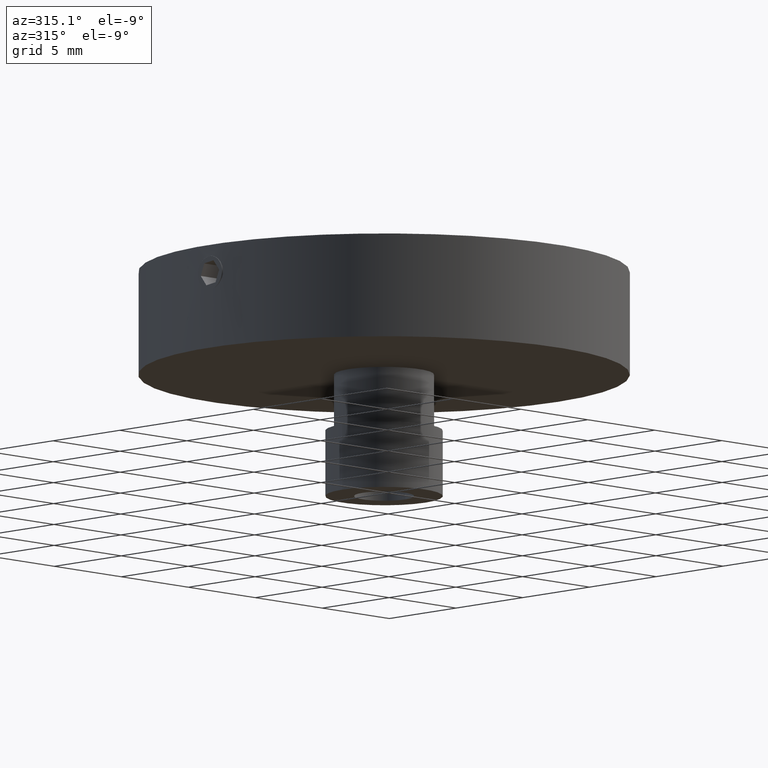
[diagram: clean part render]
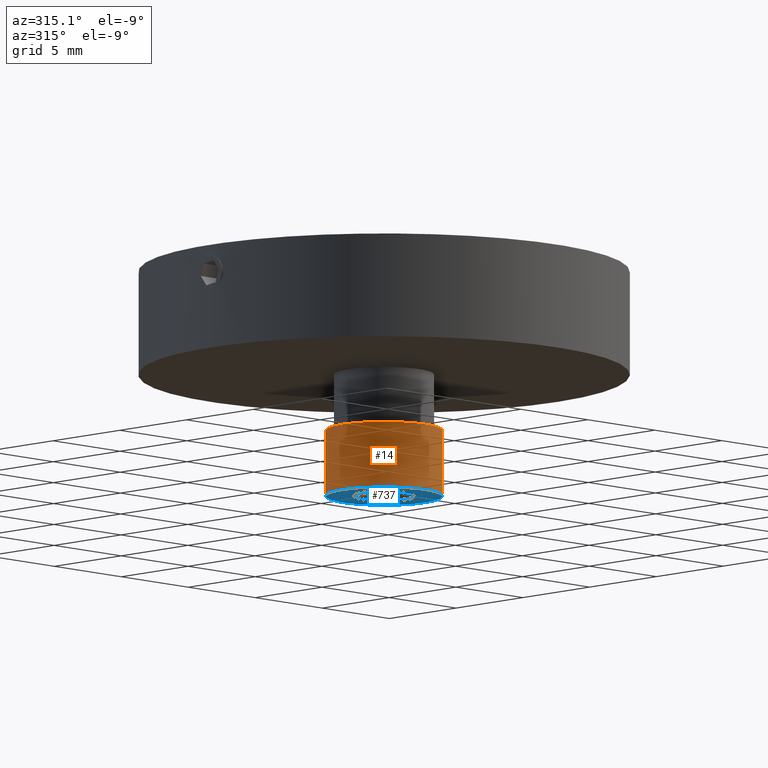
[diagram: same view with the hole feature highlighted: cylindrical wall and planar end face, labeled with their STEP entity ids]
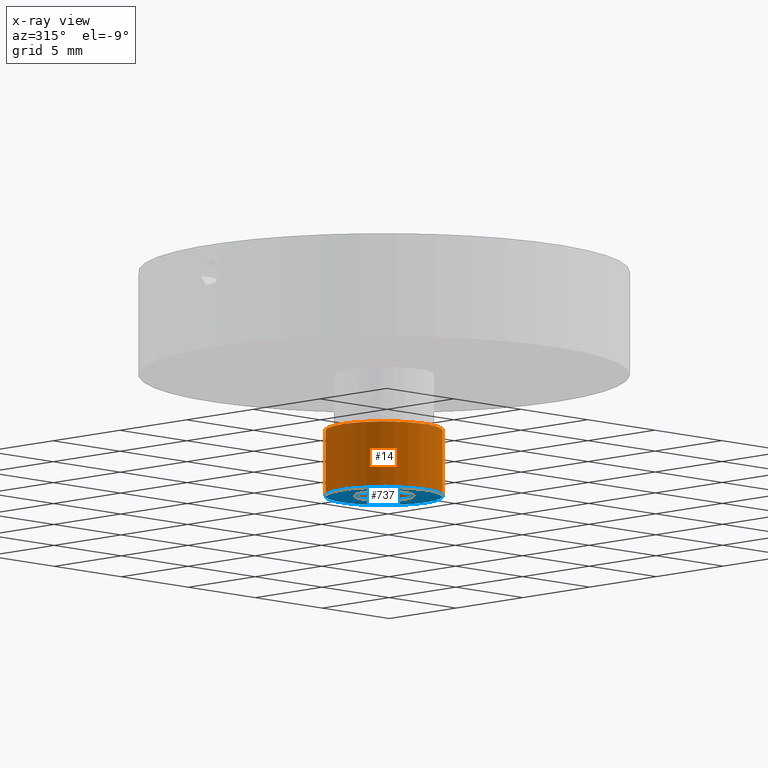
[diagram: x-ray of the same camera — body ghosted, the hole faces saturated]
A machine part, auxiliary view. The highlighted faces form one hole feature of diameter 6.22 mm: the cylindrical wall (entity #14, orange) and its adjacent planar end face (entity #737, blue) — they share a circular edge in the B-rep.
The next image is the same camera in x-ray (body ghosted, the hole faces saturated) — the bore reads through the body.
Wall:
#14 = ADVANCED_FACE ( 'NONE', ( #499, #819 ), #1077, .T. ) ;
#82 = CARTESIAN_POINT ( 'NONE',  ( -1.822524619646406000, -1.515573104758408500, 20.00000000000000400 ) ) ;
#176 = VERTEX_POINT ( 'NONE', #990 ) ;
#267 = ORIENTED_EDGE ( 'NONE', *, *, #1025, .T. ) ;
#268 = AXIS2_PLACEMENT_3D ( 'NONE', #1064, #1032, #282 ) ;
#282 = DIRECTION ( 'NONE',  ( -1.000000000000000000, 0.0000000000000000000, 0.0000000000000000000 ) ) ;
#341 = ORIENTED_EDGE ( 'NONE', *, *, #885, .F. ) ;
#373 = AXIS2_PLACEMENT_3D ( 'NONE', #860, #374, #687 ) ;
#374 = DIRECTION ( 'NONE',  ( 0.0000000000000000000, 0.0000000000000000000, -1.000000000000000000 ) ) ;
#381 = EDGE_LOOP ( 'NONE', ( #341 ) ) ;
#465 = CARTESIAN_POINT ( 'NONE',  ( -4.932524619646406100, -1.515573104758408500, 20.00000000000000400 ) ) ;
#499 = FACE_OUTER_BOUND ( 'NONE', #381, .T. ) ;
#587 = CIRCLE ( 'NONE', #373, 3.109999999999999900 ) ;
#611 = EDGE_LOOP ( 'NONE', ( #267 ) ) ;
#687 = DIRECTION ( 'NONE',  ( -1.000000000000000000, 0.0000000000000000000, 0.0000000000000000000 ) ) ;
#819 = FACE_OUTER_BOUND ( 'NONE', #611, .T. ) ;
#860 = CARTESIAN_POINT ( 'NONE',  ( -1.822524619646406000, -1.515573104758408500, 23.50000000000000000 ) ) ;
#885 = EDGE_CURVE ( 'NONE', #899, #899, #977, .T. ) ;
#899 = VERTEX_POINT ( 'NONE', #465 ) ;
#977 = CIRCLE ( 'NONE', #268, 3.109999999999999900 ) ;
#990 = CARTESIAN_POINT ( 'NONE',  ( -4.932524619646406100, -1.515573104758408500, 23.50000000000000000 ) ) ;
#1025 = EDGE_CURVE ( 'NONE', #176, #176, #587, .T. ) ;
#1030 = AXIS2_PLACEMENT_3D ( 'NONE', #82, #1048, #1062 ) ;
#1032 = DIRECTION ( 'NONE',  ( 0.0000000000000000000, 0.0000000000000000000, -1.000000000000000000 ) ) ;
#1048 = DIRECTION ( 'NONE',  ( -0.0000000000000000000, -0.0000000000000000000, 1.000000000000000000 ) ) ;
#1062 = DIRECTION ( 'NONE',  ( 1.000000000000000000, 0.0000000000000000000, 0.0000000000000000000 ) ) ;
#1064 = CARTESIAN_POINT ( 'NONE',  ( -1.822524619646406000, -1.515573104758408500, 20.00000000000000400 ) ) ;
#1077 = CYLINDRICAL_SURFACE ( 'NONE', #1030, 3.110000000000000300 ) ;
End face:
#70 = EDGE_LOOP ( 'NONE', ( #159 ) ) ;
#159 = ORIENTED_EDGE ( 'NONE', *, *, #885, .T. ) ;
#256 = EDGE_CURVE ( 'NONE', #475, #475, #846, .T. ) ;
#268 = AXIS2_PLACEMENT_3D ( 'NONE', #1064, #1032, #282 ) ;
#273 = AXIS2_PLACEMENT_3D ( 'NONE', #693, #320, #768 ) ;
#282 = DIRECTION ( 'NONE',  ( -1.000000000000000000, 0.0000000000000000000, 0.0000000000000000000 ) ) ;
#320 = DIRECTION ( 'NONE',  ( 0.0000000000000000000, 0.0000000000000000000, -1.000000000000000000 ) ) ;
#465 = CARTESIAN_POINT ( 'NONE',  ( -4.932524619646406100, -1.515573104758408500, 20.00000000000000400 ) ) ;
#475 = VERTEX_POINT ( 'NONE', #541 ) ;
#541 = CARTESIAN_POINT ( 'NONE',  ( -3.412524619646406500, -1.515573104758408500, 20.00000000000000400 ) ) ;
#552 = PLANE ( 'NONE',  #1084 ) ;
#565 = ORIENTED_EDGE ( 'NONE', *, *, #256, .F. ) ;
#566 = CARTESIAN_POINT ( 'NONE',  ( -1.822524619646406000, -1.515573104758408500, 20.00000000000000400 ) ) ;
#658 = DIRECTION ( 'NONE',  ( -1.000000000000000000, 0.0000000000000000000, -0.0000000000000000000 ) ) ;
#693 = CARTESIAN_POINT ( 'NONE',  ( -1.822524619646406000, -1.515573104758408500, 20.00000000000000400 ) ) ;
#737 = ADVANCED_FACE ( 'NONE', ( #910, #996 ), #552, .T. ) ;
#752 = EDGE_LOOP ( 'NONE', ( #565 ) ) ;
#768 = DIRECTION ( 'NONE',  ( -1.000000000000000000, 0.0000000000000000000, 0.0000000000000000000 ) ) ;
#846 = CIRCLE ( 'NONE', #273, 1.590000000000000300 ) ;
#883 = DIRECTION ( 'NONE',  ( 0.0000000000000000000, 0.0000000000000000000, -1.000000000000000000 ) ) ;
#885 = EDGE_CURVE ( 'NONE', #899, #899, #977, .T. ) ;
#899 = VERTEX_POINT ( 'NONE', #465 ) ;
#910 = FACE_OUTER_BOUND ( 'NONE', #70, .T. ) ;
#977 = CIRCLE ( 'NONE', #268, 3.109999999999999900 ) ;
#996 = FACE_BOUND ( 'NONE', #752, .T. ) ;
#1032 = DIRECTION ( 'NONE',  ( 0.0000000000000000000, 0.0000000000000000000, -1.000000000000000000 ) ) ;
#1064 = CARTESIAN_POINT ( 'NONE',  ( -1.822524619646406000, -1.515573104758408500, 20.00000000000000400 ) ) ;
#1084 = AXIS2_PLACEMENT_3D ( 'NONE', #566, #883, #658 ) ;